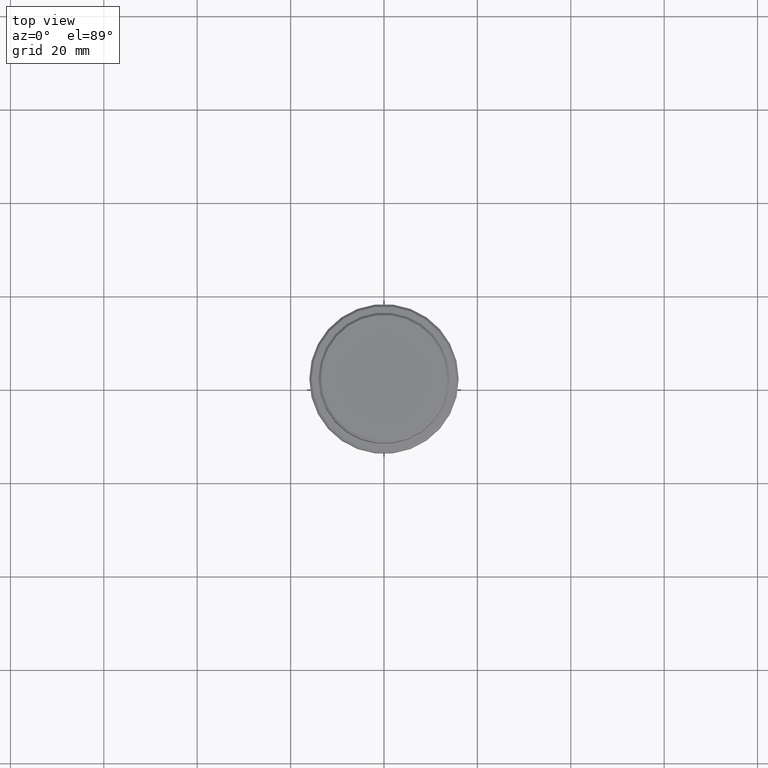
[diagram: clean part render]
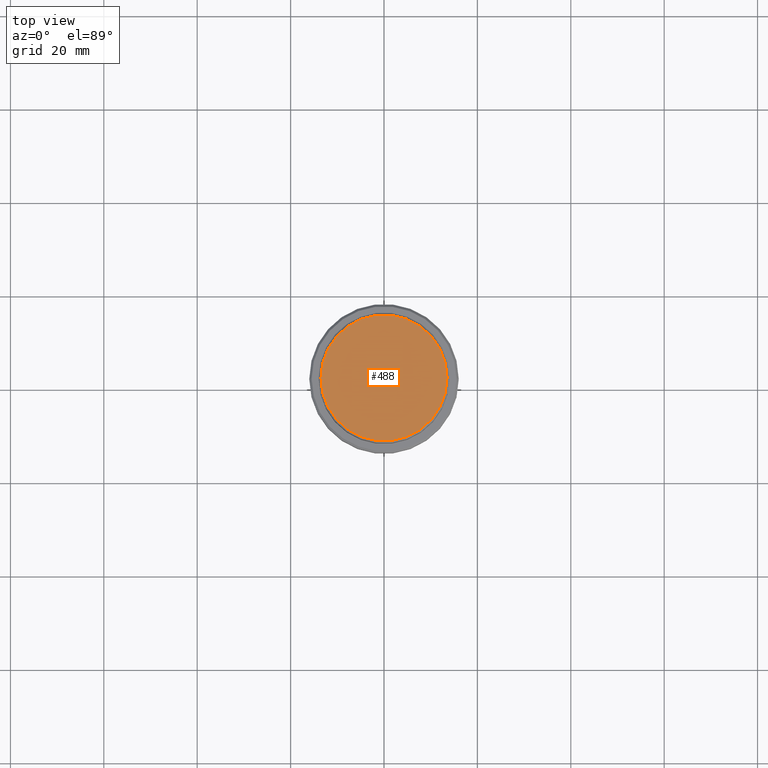
[diagram: same view with one face highlighted and labeled with its STEP entity id]
A machine part, top view. The second image highlights one B-rep face of the part: STEP entity #488.
In plain terms, the highlighted planar face has unit normal (0, -0, 1).
Its self-contained STEP definition (entity closure, byte-faithful):
#40 = FACE_OUTER_BOUND ( 'NONE', #50, .T. ) ;
#50 = EDGE_LOOP ( 'NONE', ( #160, #849 ) ) ;
#72 = CIRCLE ( 'NONE', #665, 13.49999999999998401 ) ;
#139 = DIRECTION ( 'NONE',  ( 0.000000000000000000, -0.000000000000000000, 1.000000000000000000 ) ) ;
#160 = ORIENTED_EDGE ( 'NONE', *, *, #627, .T. ) ;
#369 = CARTESIAN_POINT ( 'NONE',  ( 0.000000000000000000, 0.000000000000000000, 0.000000000000000000 ) ) ;
#478 = DIRECTION ( 'NONE',  ( 1.000000000000000000, 0.000000000000000000, 0.000000000000000000 ) ) ;
#488 = ADVANCED_FACE ( 'NONE', ( #40 ), #948, .T. ) ;
#592 = VERTEX_POINT ( 'NONE', #1167 ) ;
#620 = DIRECTION ( 'NONE',  ( 1.000000000000000000, 0.000000000000000000, 0.000000000000000000 ) ) ;
#627 = EDGE_CURVE ( 'NONE', #1186, #592, #1398, .T. ) ;
#665 = AXIS2_PLACEMENT_3D ( 'NONE', #369, #1140, #478 ) ;
#849 = ORIENTED_EDGE ( 'NONE', *, *, #1181, .T. ) ;
#948 = PLANE ( 'NONE',  #1110 ) ;
#1069 = CARTESIAN_POINT ( 'NONE',  ( 0.000000000000000000, 0.000000000000000000, 0.000000000000000000 ) ) ;
#1110 = AXIS2_PLACEMENT_3D ( 'NONE', #1372, #139, #620 ) ;
#1140 = DIRECTION ( 'NONE',  ( -0.000000000000000000, -0.000000000000000000, 1.000000000000000000 ) ) ;
#1149 = DIRECTION ( 'NONE',  ( -0.000000000000000000, -0.000000000000000000, 1.000000000000000000 ) ) ;
#1167 = CARTESIAN_POINT ( 'NONE',  ( 13.49999999999998401, 1.683889348827609273E-15, 0.000000000000000000 ) ) ;
#1181 = EDGE_CURVE ( 'NONE', #592, #1186, #72, .T. ) ;
#1186 = VERTEX_POINT ( 'NONE', #1246 ) ;
#1246 = CARTESIAN_POINT ( 'NONE',  ( -13.49999999999998401, 0.000000000000000000, 0.000000000000000000 ) ) ;
#1252 = AXIS2_PLACEMENT_3D ( 'NONE', #1069, #1149, #1360 ) ;
#1360 = DIRECTION ( 'NONE',  ( 1.000000000000000000, 0.000000000000000000, 0.000000000000000000 ) ) ;
#1372 = CARTESIAN_POINT ( 'NONE',  ( 0.000000000000000000, 0.000000000000000000, 0.000000000000000000 ) ) ;
#1398 = CIRCLE ( 'NONE', #1252, 13.49999999999998401 ) ;